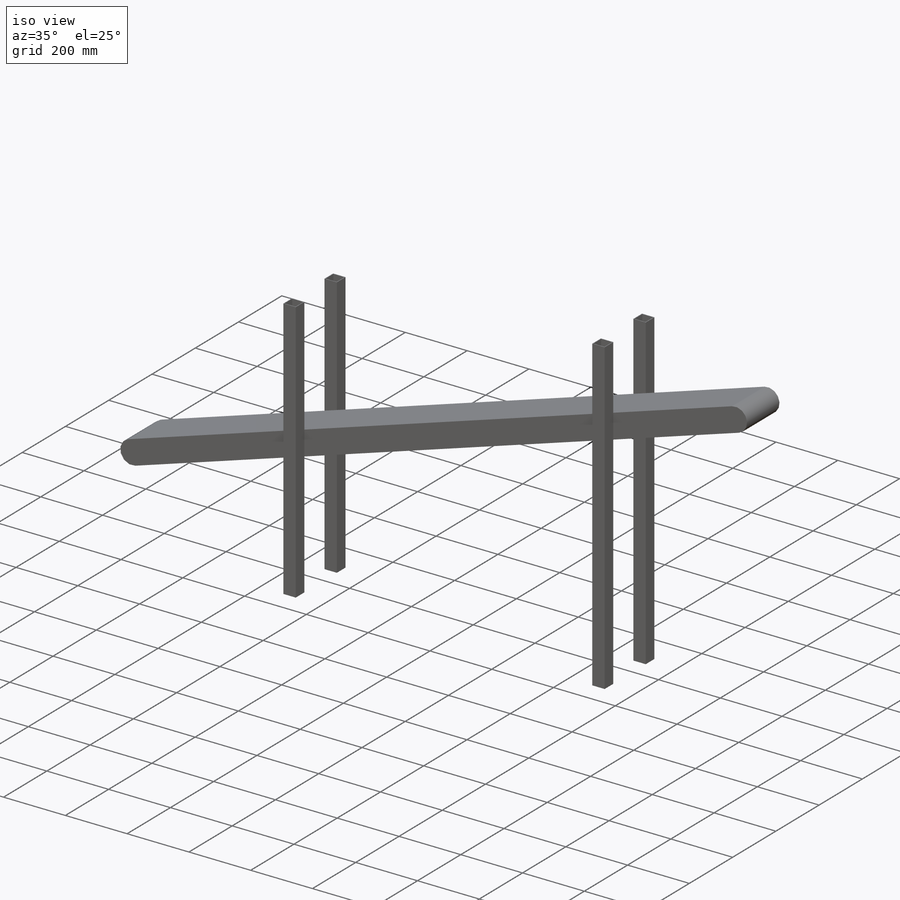
[diagram: iso view]
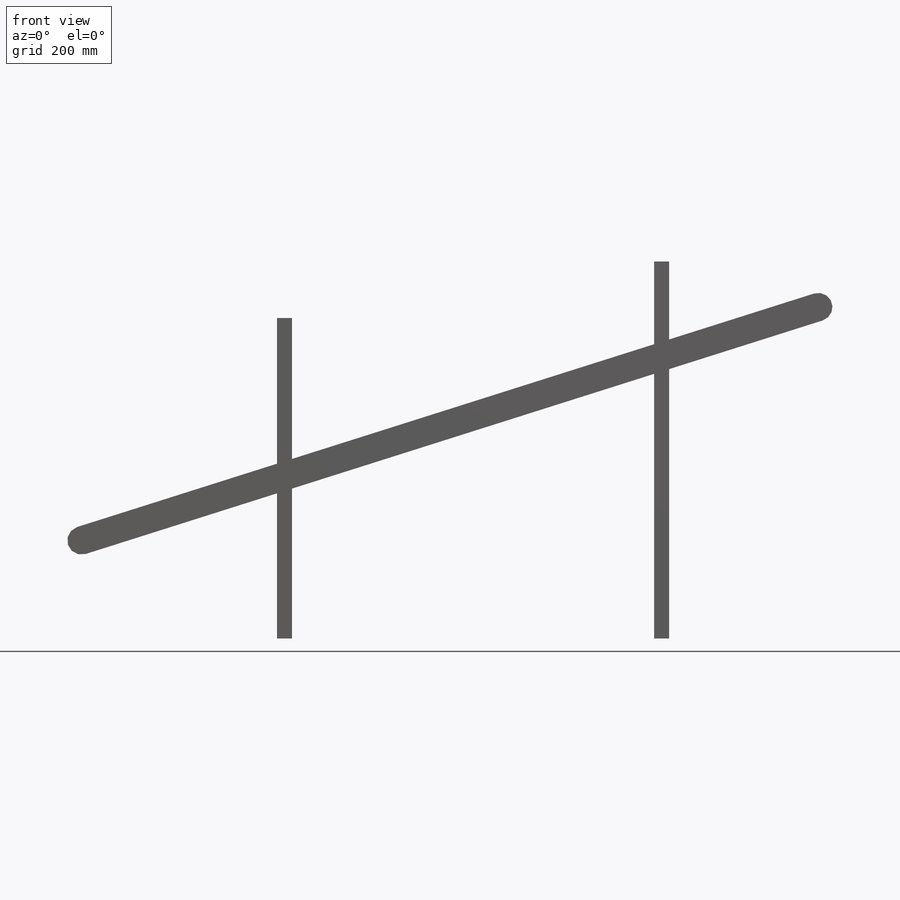
[diagram: front view]
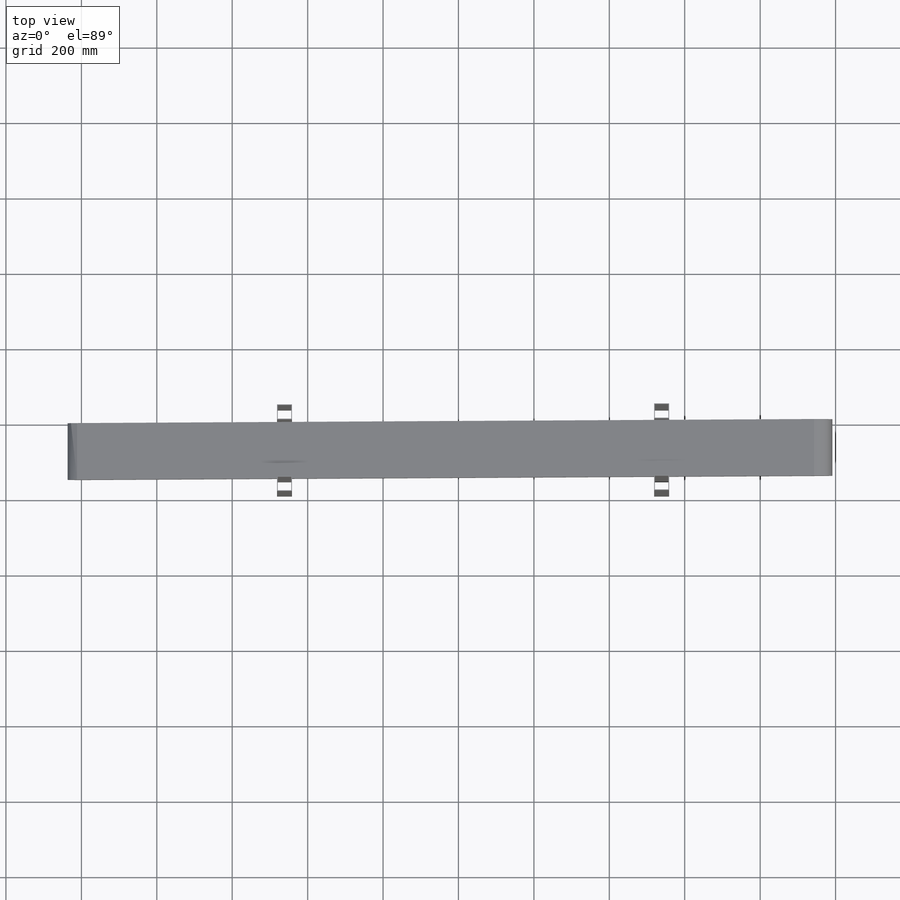
[diagram: top view]
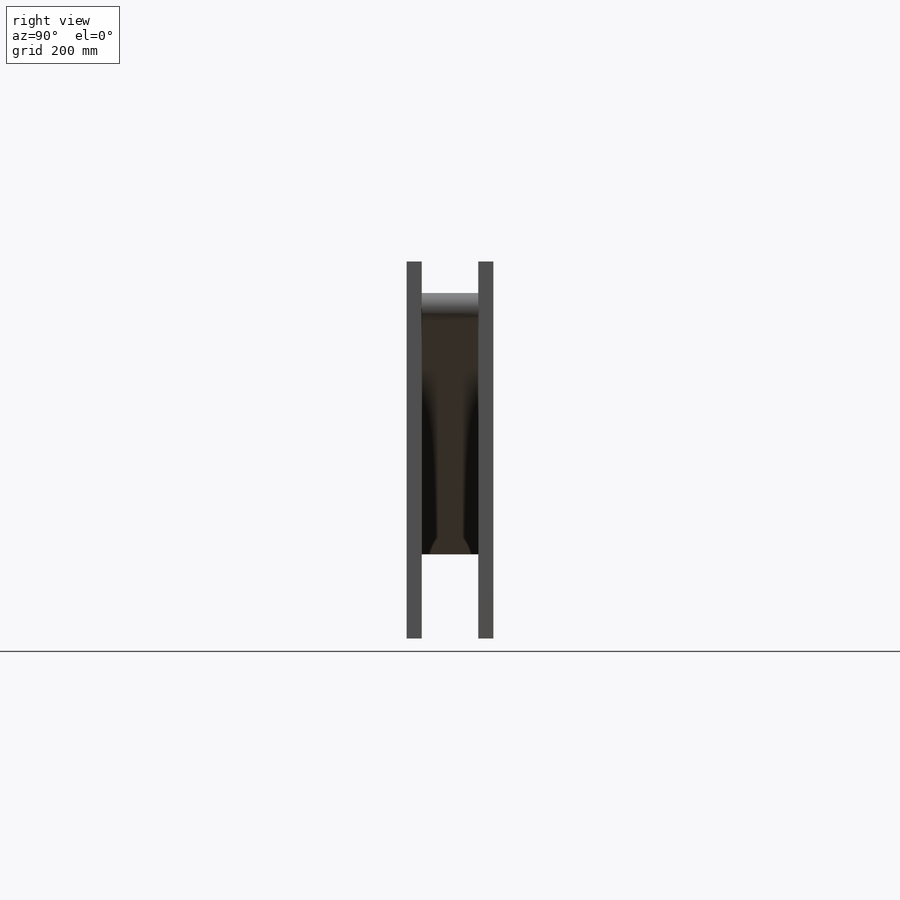
[diagram: right view]
SOLIDWORKS PART (.sldprt)
format: sldprt  version: not decoded by parser v0  size: 225,280 bytes
history: native  units: mm
features: sketch x3, extrude x3, material x1 (+13 scaffold rows collapsed)
feature tree (20):
  scaffold x13  (default folders/planes/origin — collapsed)
  material  "Material <not specified>"
  sketch  "Sketch1"  dims[c1.D2=3.75mm c1.D1=75.0mm c2.D2=2050.0mm c2.D3=2050.0mm c3.D3=~21.309422deg c3.D4=740.0mm c3.D5=385.0mm c4.D3=1000.0mm c4.D6=515.0mm c4.D7=~345.516667mm c4.D5=260.0mm]
  extrude  "Boss-Extrude1"  Depth=150mm
  sketch  "Sketch3"  dims[D1=40.0mm D2=550.0mm D3=2.0mm D4=2.0mm]
  extrude  "Boss-Extrude2"  Depth=850mm
  sketch  "Sketch4"  dims[D1=40.0mm D2=1000.0mm D3=2.0mm]
  extrude  "Boss-Extrude3"  Depth=1000mm
decode coverage: 6 of 6 modeling features carry decoded parameters
note: ~ marks probable driven/reference dimensions
note: suppression state not decoded; provenance and decode notes live in map.json
